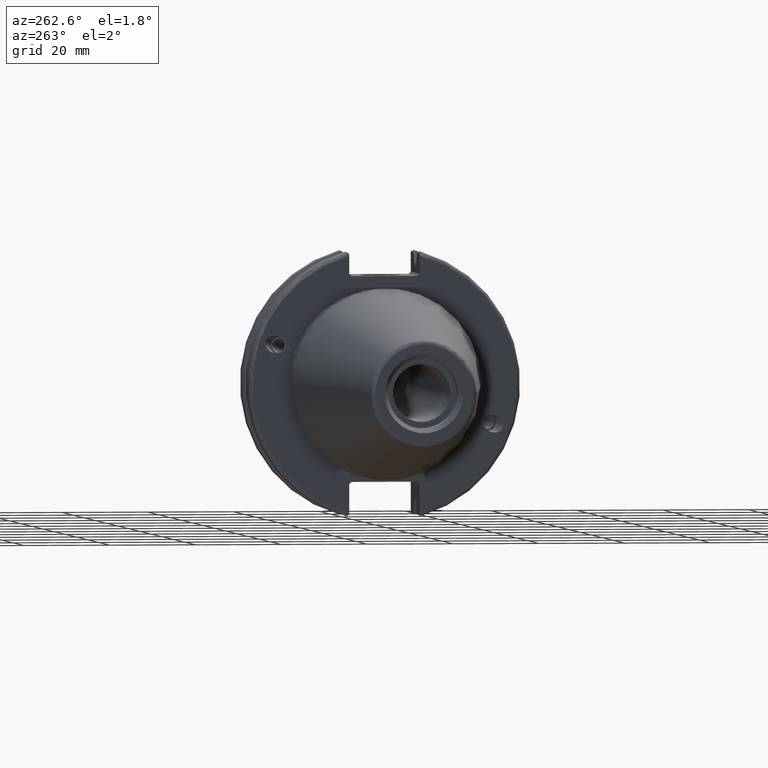
[diagram: clean part render]
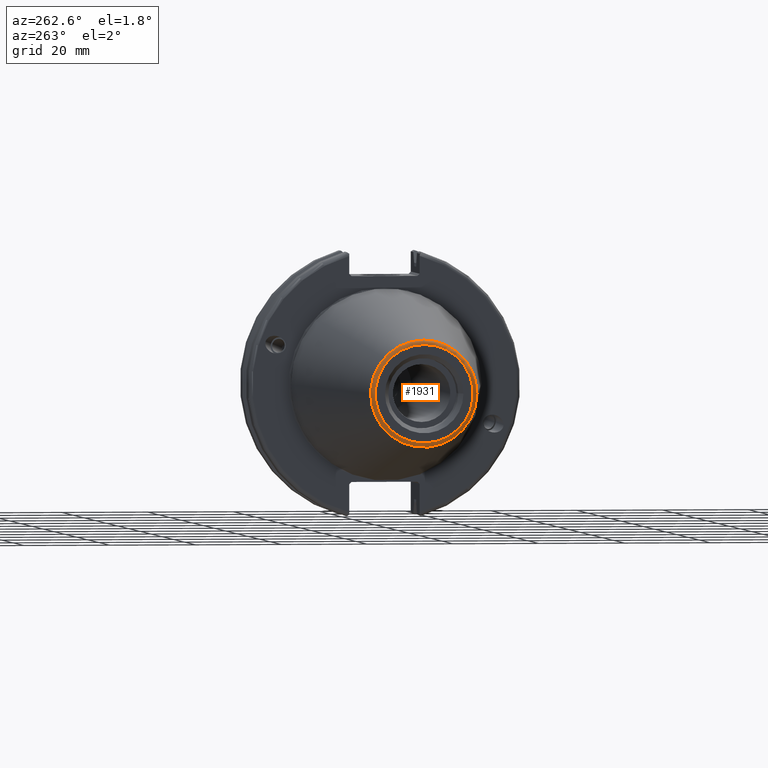
[diagram: same view with one face highlighted and labeled with its STEP entity id]
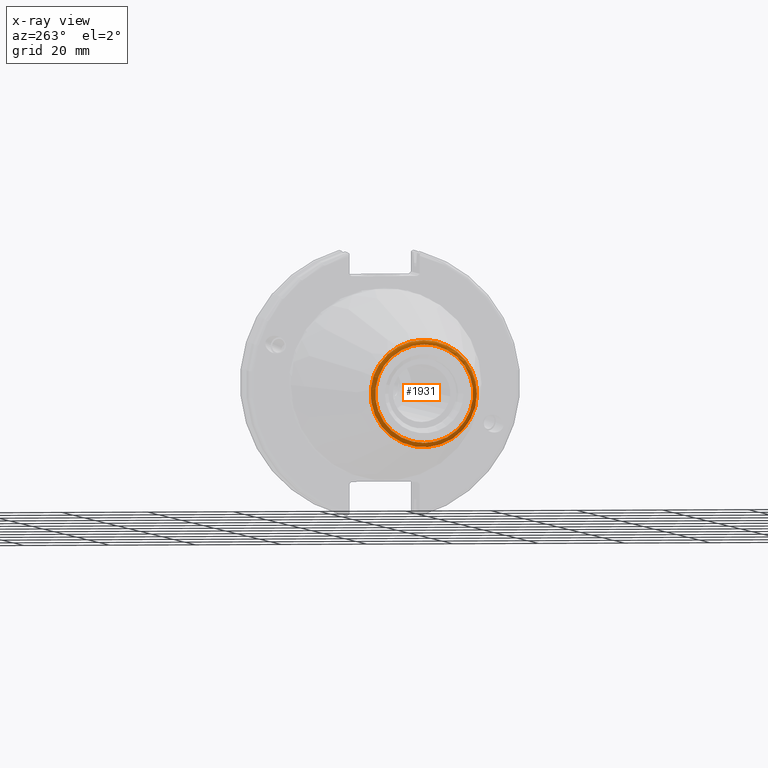
[diagram: x-ray of the same camera — body ghosted, the highlighted face saturated]
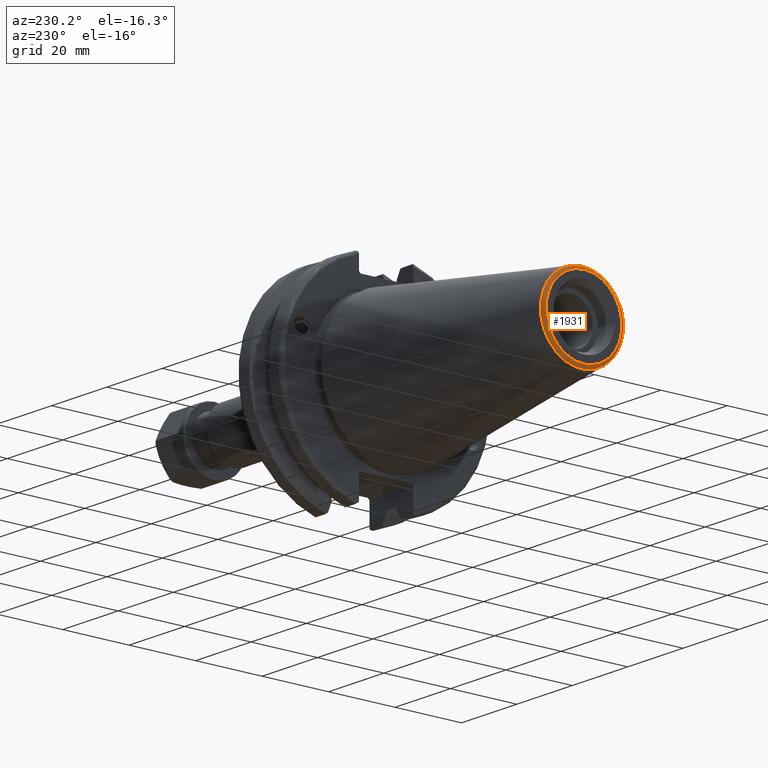
[diagram: same view with one face highlighted and labeled with its STEP entity id]
A machine part, auxiliary view. The second image highlights one B-rep face of the part: STEP entity #1931.
The next image is the same camera in x-ray: the body ghosted, the highlighted face saturated — about 0% of this face is hidden behind the body in this view.
A second angle (auxiliary view) of the same face is appended — the face is thin or edge-on in the first view.
In plain terms, the highlighted toroidal blend (fillet) surface has major radius 11.4071 mm and minor (blend) radius 1 mm.
Its self-contained STEP definition (entity closure, byte-faithful):
#84=TOROIDAL_SURFACE('',#2184,11.4071305970304,1.);
#281=FACE_OUTER_BOUND('',#402,.T.);
#402=EDGE_LOOP('',(#1618,#1619,#1620,#1621,#1622));
#753=CIRCLE('',#2185,12.3966635780937);
#754=CIRCLE('',#2186,12.3966635780937);
#755=CIRCLE('',#2187,1.);
#756=CIRCLE('',#2188,11.4071305970304);
#933=VERTEX_POINT('',#3645);
#934=VERTEX_POINT('',#3646);
#935=VERTEX_POINT('',#3649);
#1185=EDGE_CURVE('',#933,#934,#753,.T.);
#1186=EDGE_CURVE('',#934,#933,#754,.T.);
#1187=EDGE_CURVE('',#933,#935,#755,.T.);
#1188=EDGE_CURVE('',#935,#935,#756,.T.);
#1618=ORIENTED_EDGE('',*,*,#1185,.T.);
#1619=ORIENTED_EDGE('',*,*,#1186,.T.);
#1620=ORIENTED_EDGE('',*,*,#1187,.T.);
#1621=ORIENTED_EDGE('',*,*,#1188,.T.);
#1622=ORIENTED_EDGE('',*,*,#1187,.F.);
#1931=ADVANCED_FACE('',(#281),#84,.T.);
#2184=AXIS2_PLACEMENT_3D('',#3644,#2631,#2632);
#2185=AXIS2_PLACEMENT_3D('',#3647,#2633,#2634);
#2186=AXIS2_PLACEMENT_3D('',#3648,#2635,#2636);
#2187=AXIS2_PLACEMENT_3D('',#3650,#2637,#2638);
#2188=AXIS2_PLACEMENT_3D('',#3651,#2639,#2640);
#2631=DIRECTION('center_axis',(1.,0.,0.));
#2632=DIRECTION('ref_axis',(0.,0.,-1.));
#2633=DIRECTION('center_axis',(-1.,0.,0.));
#2634=DIRECTION('ref_axis',(0.,-1.,3.06161699786838E-17));
#2635=DIRECTION('center_axis',(-1.,0.,0.));
#2636=DIRECTION('ref_axis',(0.,-1.,3.06161699786838E-17));
#2637=DIRECTION('center_axis',(0.,-1.,-1.22464679914735E-16));
#2638=DIRECTION('ref_axis',(0.,-1.22464679914735E-16,1.));
#2639=DIRECTION('center_axis',(1.,0.,0.));
#2640=DIRECTION('ref_axis',(0.,-1.,1.83697019872103E-16));
#3644=CARTESIAN_POINT('Origin',(-67.25,0.,0.));
#3645=CARTESIAN_POINT('',(-67.3943068930717,-1.5181534371019E-15,12.3966635780937));
#3646=CARTESIAN_POINT('',(-67.3943068930718,-12.3966635780937,-1.5181534371019E-15));
#3647=CARTESIAN_POINT('Origin',(-67.3943068930717,0.,-1.89769179637738E-15));
#3648=CARTESIAN_POINT('Origin',(-67.3943068930717,0.,-1.89769179637738E-15));
#3649=CARTESIAN_POINT('',(-68.25,-1.39697059731091E-15,11.4071305970304));
#3650=CARTESIAN_POINT('Origin',(-67.25,-1.39697059731091E-15,11.4071305970304));
#3651=CARTESIAN_POINT('Origin',(-68.25,0.,0.));